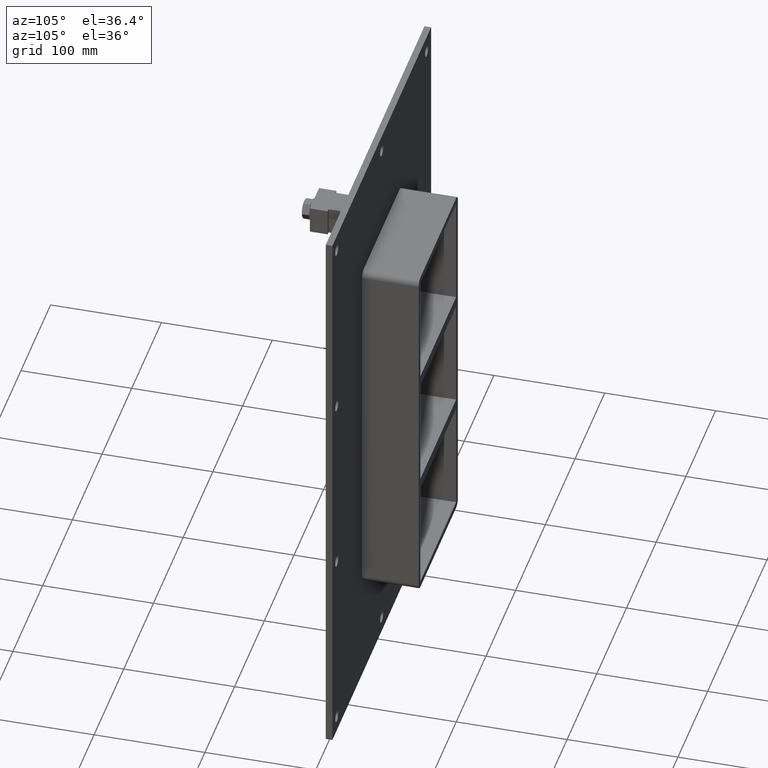
[diagram: clean part render]
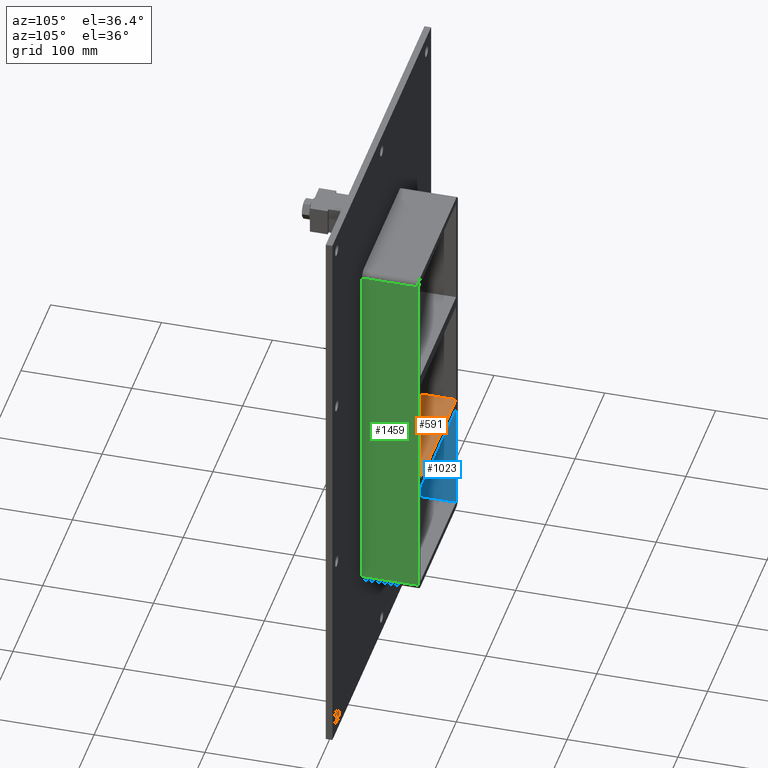
[diagram: same view with three faces highlighted in distinct colors, each labeled with its STEP entity id]
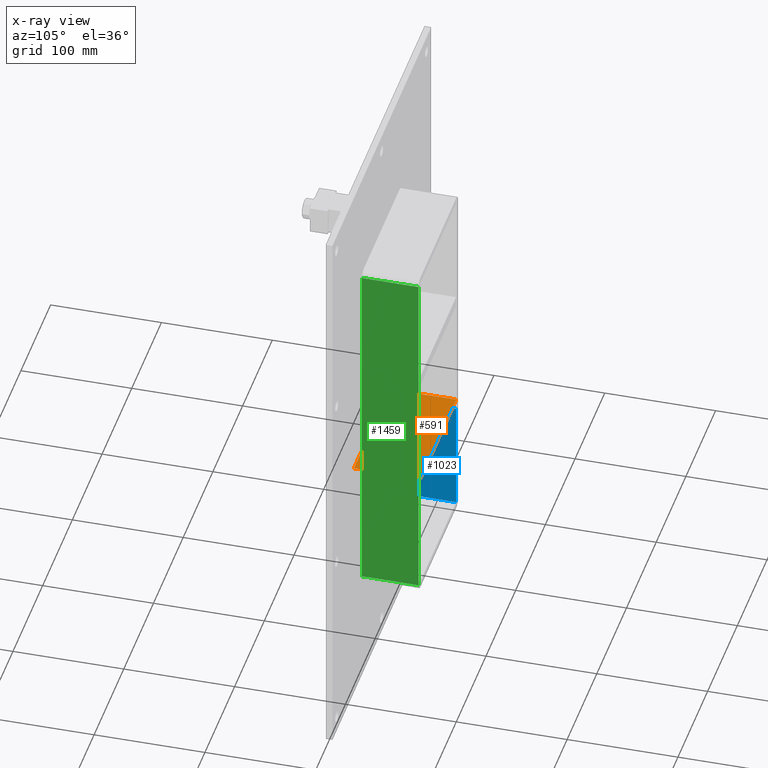
[diagram: x-ray of the same camera — body ghosted, the three highlighted faces saturated]
A machine part, auxiliary view with three faces highlighted in distinct colors.
The next image is the same camera in x-ray (body ghosted, the three faces saturated) — at least one of them is partly hidden behind the body in this view.
Their STEP definitions:

[orange] entity #591 — the highlighted planar face has unit normal (0, 0, 1).
#465=CARTESIAN_POINT('',(60.249999999999211,57.0,-50.499999999999545));
#466=VERTEX_POINT('',#465);
#473=CARTESIAN_POINT('',(60.249999999999211,-3.0,-50.499999999999545));
#474=VERTEX_POINT('',#473);
#475=CARTESIAN_POINT('',(60.25,57.000000000000007,-50.499999999999545));
#476=DIRECTION('',(0.0,-1.0,0.0));
#477=VECTOR('',#476,60.000000000000007);
#478=LINE('',#475,#477);
#479=EDGE_CURVE('',#466,#474,#478,.T.);
#561=CARTESIAN_POINT('',(-60.249999999997613,-3.0,-50.499999999999545));
#562=DIRECTION('',(0.0,0.0,1.0));
#563=DIRECTION('',(1.0,0.0,0.0));
#564=AXIS2_PLACEMENT_3D('',#561,#562,#563);
#565=PLANE('',#564);
#566=CARTESIAN_POINT('',(-60.249999999997613,-3.0,-50.499999999999545));
#567=VERTEX_POINT('',#566);
#568=CARTESIAN_POINT('',(-60.249999999997613,-3.0,-50.499999999999545));
#569=DIRECTION('',(1.0,0.0,0.0));
#570=VECTOR('',#569,120.49999999999683);
#571=LINE('',#568,#570);
#572=EDGE_CURVE('',#567,#474,#571,.T.);
#573=ORIENTED_EDGE('',*,*,#572,.T.);
#574=ORIENTED_EDGE('',*,*,#479,.F.);
#575=CARTESIAN_POINT('',(-60.249999999997613,57.0,-50.499999999999545));
#576=VERTEX_POINT('',#575);
#577=CARTESIAN_POINT('',(-60.249999999997613,57.0,-50.499999999999545));
#578=DIRECTION('',(1.0,0.0,0.0));
#579=VECTOR('',#578,120.49999999999683);
#580=LINE('',#577,#579);
#581=EDGE_CURVE('',#576,#466,#580,.T.);
#582=ORIENTED_EDGE('',*,*,#581,.F.);
#583=CARTESIAN_POINT('',(-60.25,-3.0,-50.499999999999545));
#584=DIRECTION('',(0.0,1.0,0.0));
#585=VECTOR('',#584,60.000000000000007);
#586=LINE('',#583,#585);
#587=EDGE_CURVE('',#567,#576,#586,.T.);
#588=ORIENTED_EDGE('',*,*,#587,.F.);
#589=EDGE_LOOP('',(#573,#574,#582,#588));
#590=FACE_OUTER_BOUND('',#589,.T.);
#591=ADVANCED_FACE('',(#590),#565,.T.);

[blue] entity #1023 — the highlighted planar face has unit normal (-1, 0, 0).
#528=CARTESIAN_POINT('',(-60.249999999997613,-3.0,-60.500000000010914));
#529=VERTEX_POINT('',#528);
#536=CARTESIAN_POINT('',(-60.249999999997613,57.0,-60.500000000010914));
#537=VERTEX_POINT('',#536);
#538=CARTESIAN_POINT('',(-60.25,57.000000000000007,-60.500000000010914));
#539=DIRECTION('',(0.0,-1.0,0.0));
#540=VECTOR('',#539,60.000000000000007);
#541=LINE('',#538,#540);
#542=EDGE_CURVE('',#537,#529,#541,.T.);
#993=CARTESIAN_POINT('',(-60.25,0.0,-161.5));
#994=DIRECTION('',(-1.0,0.0,0.0));
#995=DIRECTION('',(0.0,0.0,1.0));
#996=AXIS2_PLACEMENT_3D('',#993,#994,#995);
#997=PLANE('',#996);
#998=ORIENTED_EDGE('',*,*,#542,.T.);
#999=CARTESIAN_POINT('',(-60.25,-3.0,-161.5));
#1000=VERTEX_POINT('',#999);
#1001=CARTESIAN_POINT('',(-60.25,-3.0,-161.5));
#1002=DIRECTION('',(0.0,0.0,1.0));
#1003=VECTOR('',#1002,100.99999999998909);
#1004=LINE('',#1001,#1003);
#1005=EDGE_CURVE('',#1000,#529,#1004,.T.);
#1006=ORIENTED_EDGE('',*,*,#1005,.F.);
#1007=CARTESIAN_POINT('',(-60.25,57.0,-161.5));
#1008=VERTEX_POINT('',#1007);
#1009=CARTESIAN_POINT('',(-60.25,-3.0,-161.5));
#1010=DIRECTION('',(0.0,1.0,0.0));
#1011=VECTOR('',#1010,60.0);
#1012=LINE('',#1009,#1011);
#1013=EDGE_CURVE('',#1000,#1008,#1012,.T.);
#1014=ORIENTED_EDGE('',*,*,#1013,.T.);
#1015=CARTESIAN_POINT('',(-60.25,57.0,-60.500000000010921));
#1016=DIRECTION('',(0.0,0.0,-1.0));
#1017=VECTOR('',#1016,100.99999999998909);
#1018=LINE('',#1015,#1017);
#1019=EDGE_CURVE('',#537,#1008,#1018,.T.);
#1020=ORIENTED_EDGE('',*,*,#1019,.F.);
#1021=EDGE_LOOP('',(#998,#1006,#1014,#1020));
#1022=FACE_OUTER_BOUND('',#1021,.T.);
#1023=ADVANCED_FACE('',(#1022),#997,.F.);

[green] entity #1459 — the highlighted planar face has unit normal (1, 0, 0).
#750=CARTESIAN_POINT('',(66.249999999999986,6.000000000000001,-161.5));
#751=VERTEX_POINT('',#750);
#759=CARTESIAN_POINT('',(66.249999999999986,6.000000000000001,161.5));
#760=VERTEX_POINT('',#759);
#761=CARTESIAN_POINT('',(66.249999999999986,6.000000000000001,161.5));
#762=DIRECTION('',(0.0,0.0,-1.0));
#763=VECTOR('',#762,323.0);
#764=LINE('',#761,#763);
#765=EDGE_CURVE('',#760,#751,#764,.T.);
#1070=CARTESIAN_POINT('',(66.249999999999986,57.0,-161.5));
#1071=VERTEX_POINT('',#1070);
#1079=CARTESIAN_POINT('',(66.249999999999986,57.0,-161.5));
#1080=DIRECTION('',(0.0,-1.0,0.0));
#1081=VECTOR('',#1080,51.0);
#1082=LINE('',#1079,#1081);
#1083=EDGE_CURVE('',#1071,#751,#1082,.T.);
#1424=CARTESIAN_POINT('',(66.249999999999986,57.0,161.5));
#1425=VERTEX_POINT('',#1424);
#1426=CARTESIAN_POINT('',(66.249999999999986,6.000000000000001,161.5));
#1427=DIRECTION('',(0.0,1.0,0.0));
#1428=VECTOR('',#1427,51.0);
#1429=LINE('',#1426,#1428);
#1430=EDGE_CURVE('',#760,#1425,#1429,.T.);
#1443=CARTESIAN_POINT('',(66.249999999999986,0.0,167.5));
#1444=DIRECTION('',(1.0,0.0,0.0));
#1445=DIRECTION('',(0.0,0.0,-1.0));
#1446=AXIS2_PLACEMENT_3D('',#1443,#1444,#1445);
#1447=PLANE('',#1446);
#1448=ORIENTED_EDGE('',*,*,#765,.T.);
#1449=ORIENTED_EDGE('',*,*,#1083,.F.);
#1450=CARTESIAN_POINT('',(66.249999999999986,57.0,161.5));
#1451=DIRECTION('',(0.0,0.0,-1.0));
#1452=VECTOR('',#1451,323.0);
#1453=LINE('',#1450,#1452);
#1454=EDGE_CURVE('',#1425,#1071,#1453,.T.);
#1455=ORIENTED_EDGE('',*,*,#1454,.F.);
#1456=ORIENTED_EDGE('',*,*,#1430,.F.);
#1457=EDGE_LOOP('',(#1448,#1449,#1455,#1456));
#1458=FACE_OUTER_BOUND('',#1457,.T.);
#1459=ADVANCED_FACE('',(#1458),#1447,.T.);